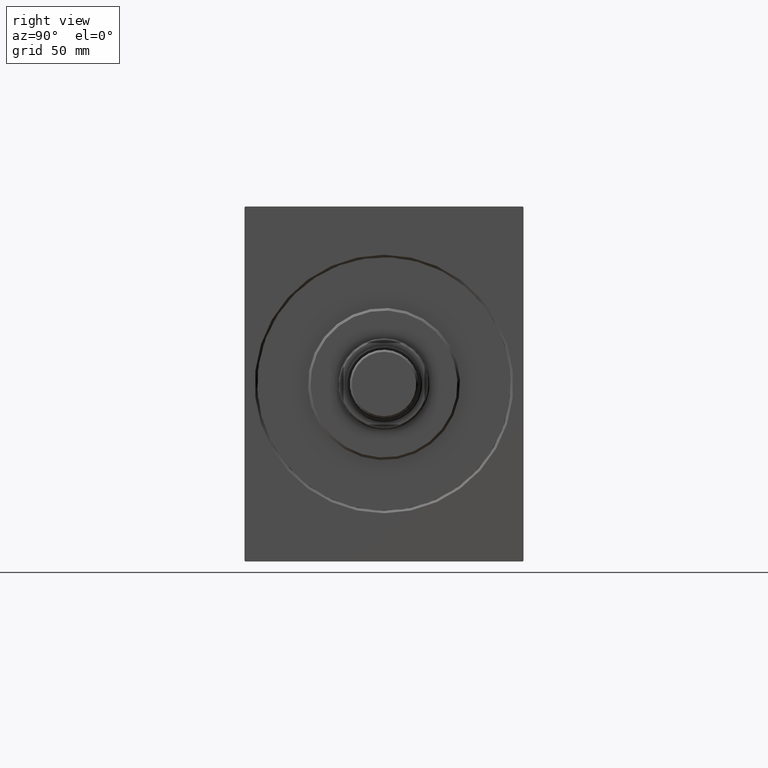
[diagram: clean part render]
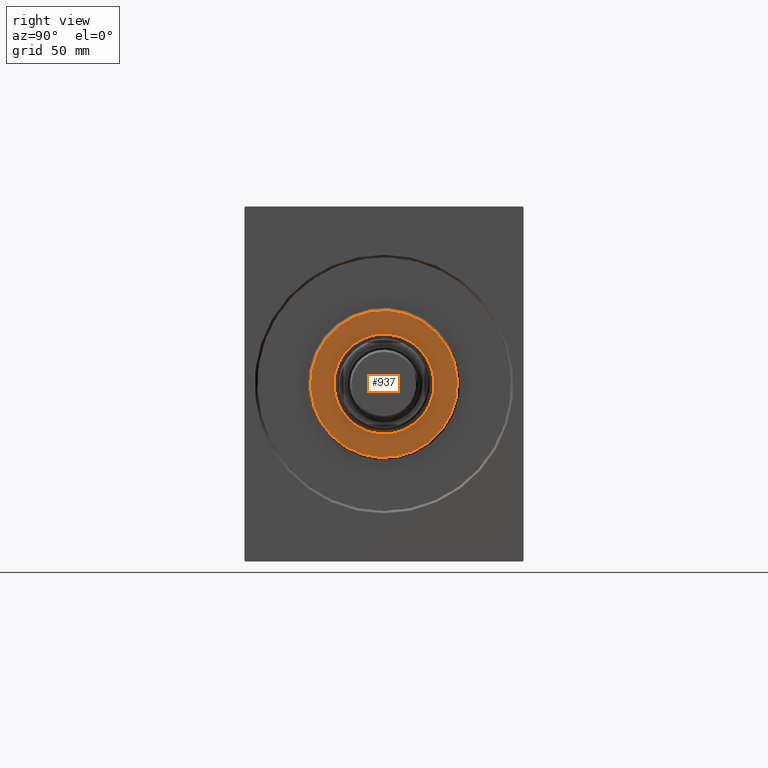
[diagram: same view with one face highlighted and labeled with its STEP entity id]
A machine part, right view. The second image highlights one B-rep face of the part: STEP entity #937.
In plain terms, the highlighted planar face has unit normal (1, -0, -0).
Its self-contained STEP definition (entity closure, byte-faithful):
#937 = ADVANCED_FACE ( 'NONE', ( #20086, #33746 ), #44017, .T. ) ;
#1467 = VERTEX_POINT ( 'NONE', #18420 ) ;
#2378 = DIRECTION ( 'NONE',  ( 0.000000000000000000, 0.000000000000000000, -1.000000000000000000 ) ) ;
#3996 = EDGE_CURVE ( 'NONE', #1467, #15613, #17121, .T. ) ;
#6930 = AXIS2_PLACEMENT_3D ( 'NONE', #21608, #21386, #24316 ) ;
#9388 = CARTESIAN_POINT ( 'NONE',  ( 3.000000000000000000, 0.000000000000000000, 0.000000000000000000 ) ) ;
#10259 = AXIS2_PLACEMENT_3D ( 'NONE', #20133, #33794, #23928 ) ;
#10518 = EDGE_LOOP ( 'NONE', ( #36710, #38406 ) ) ;
#13176 = DIRECTION ( 'NONE',  ( 1.000000000000000000, 0.000000000000000000, 0.000000000000000000 ) ) ;
#13455 = EDGE_CURVE ( 'NONE', #15613, #1467, #32432, .T. ) ;
#15603 = CIRCLE ( 'NONE', #42045, 28.99999999999999289 ) ;
#15613 = VERTEX_POINT ( 'NONE', #36369 ) ;
#17121 = CIRCLE ( 'NONE', #43573, 19.75000000000000000 ) ;
#17554 = AXIS2_PLACEMENT_3D ( 'NONE', #9388, #23026, #33334 ) ;
#18420 = CARTESIAN_POINT ( 'NONE',  ( 3.000000000000000000, 2.418677428316022726E-15, 19.75000000000000000 ) ) ;
#20086 = FACE_OUTER_BOUND ( 'NONE', #10518, .T. ) ;
#20133 = CARTESIAN_POINT ( 'NONE',  ( 3.000000000000000000, 0.000000000000000000, 0.000000000000000000 ) ) ;
#21386 = DIRECTION ( 'NONE',  ( 1.000000000000000000, -0.000000000000000000, 0.000000000000000000 ) ) ;
#21608 = CARTESIAN_POINT ( 'NONE',  ( 3.000000000000000000, 0.000000000000000000, 0.000000000000000000 ) ) ;
#22286 = DIRECTION ( 'NONE',  ( 1.000000000000000000, -0.000000000000000000, 0.000000000000000000 ) ) ;
#23026 = DIRECTION ( 'NONE',  ( 1.000000000000000000, -0.000000000000000000, 0.000000000000000000 ) ) ;
#23244 = DIRECTION ( 'NONE',  ( 0.000000000000000000, 0.000000000000000000, -1.000000000000000000 ) ) ;
#23928 = DIRECTION ( 'NONE',  ( 0.000000000000000000, 0.000000000000000000, -1.000000000000000000 ) ) ;
#24108 = ORIENTED_EDGE ( 'NONE', *, *, #13455, .F. ) ;
#24316 = DIRECTION ( 'NONE',  ( 0.000000000000000000, 0.000000000000000000, -1.000000000000000000 ) ) ;
#25496 = EDGE_CURVE ( 'NONE', #37105, #27961, #36858, .T. ) ;
#27961 = VERTEX_POINT ( 'NONE', #28059 ) ;
#28059 = CARTESIAN_POINT ( 'NONE',  ( 3.000000000000000000, 3.612708057484691604E-15, -28.99999999999999289 ) ) ;
#28349 = CARTESIAN_POINT ( 'NONE',  ( 3.000000000000000000, 0.000000000000000000, 28.99999999999999289 ) ) ;
#29674 = CARTESIAN_POINT ( 'NONE',  ( 3.000000000000000000, 0.000000000000000000, 0.000000000000000000 ) ) ;
#30831 = ORIENTED_EDGE ( 'NONE', *, *, #3996, .F. ) ;
#32432 = CIRCLE ( 'NONE', #10259, 19.75000000000000000 ) ;
#33334 = DIRECTION ( 'NONE',  ( 0.000000000000000000, 0.000000000000000000, -1.000000000000000000 ) ) ;
#33356 = EDGE_CURVE ( 'NONE', #27961, #37105, #15603, .T. ) ;
#33746 = FACE_BOUND ( 'NONE', #43003, .T. ) ;
#33794 = DIRECTION ( 'NONE',  ( 1.000000000000000000, 0.000000000000000000, 0.000000000000000000 ) ) ;
#36369 = CARTESIAN_POINT ( 'NONE',  ( 3.000000000000000000, 0.000000000000000000, -19.75000000000000000 ) ) ;
#36710 = ORIENTED_EDGE ( 'NONE', *, *, #25496, .T. ) ;
#36858 = CIRCLE ( 'NONE', #17554, 28.99999999999999289 ) ;
#37105 = VERTEX_POINT ( 'NONE', #28349 ) ;
#38406 = ORIENTED_EDGE ( 'NONE', *, *, #33356, .T. ) ;
#42045 = AXIS2_PLACEMENT_3D ( 'NONE', #29674, #22286, #2378 ) ;
#43003 = EDGE_LOOP ( 'NONE', ( #24108, #30831 ) ) ;
#43573 = AXIS2_PLACEMENT_3D ( 'NONE', #44280, #13176, #23244 ) ;
#44017 = PLANE ( 'NONE',  #6930 ) ;
#44280 = CARTESIAN_POINT ( 'NONE',  ( 3.000000000000000000, 0.000000000000000000, 0.000000000000000000 ) ) ;